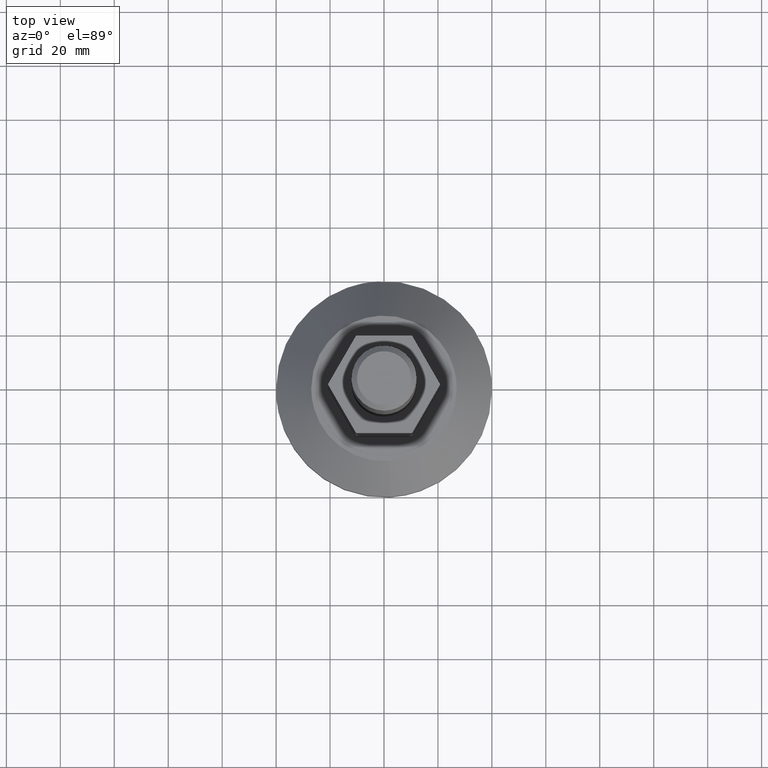
[diagram: clean part render]
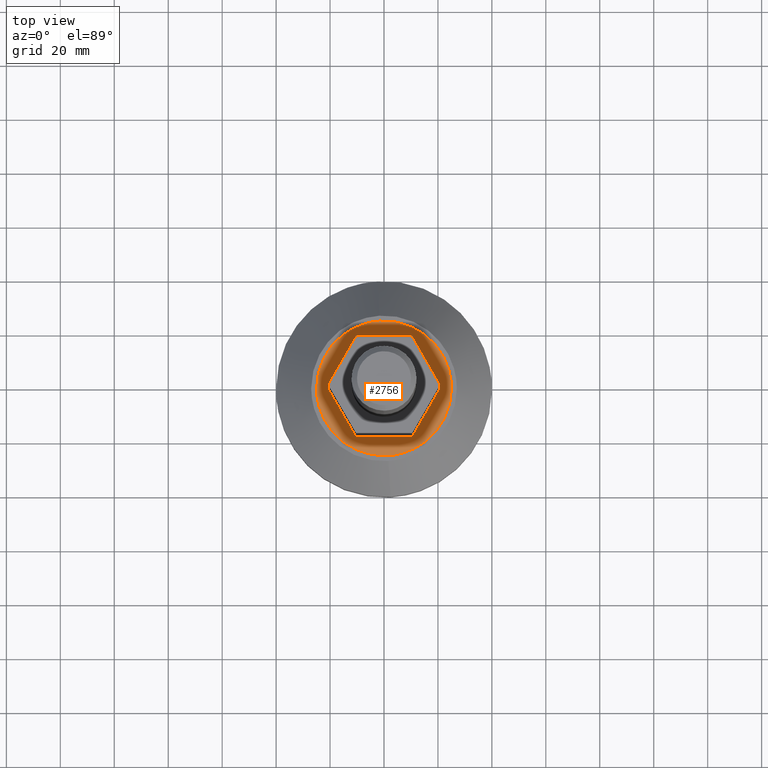
[diagram: same view with one face highlighted and labeled with its STEP entity id]
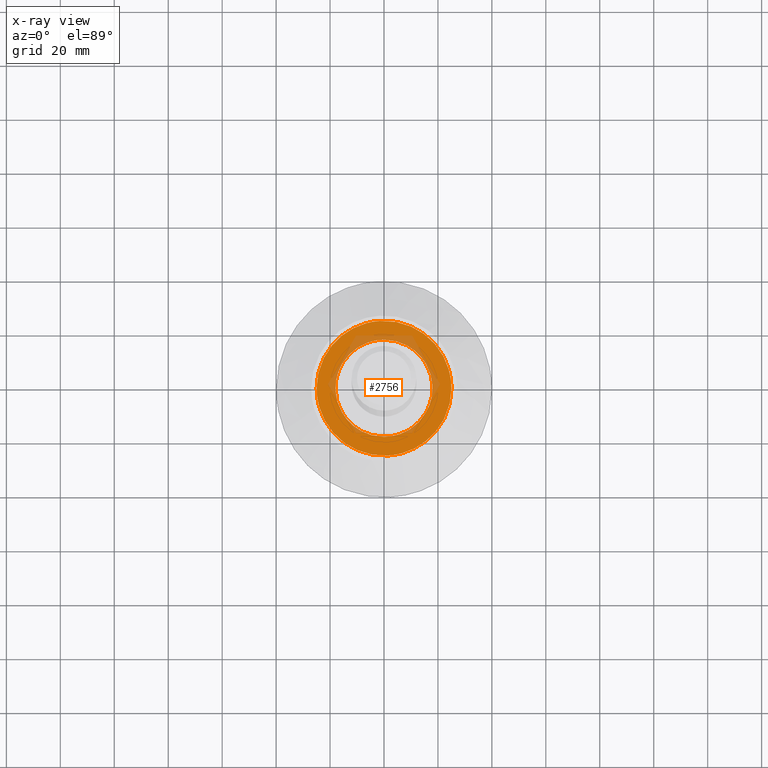
[diagram: x-ray of the same camera — body ghosted, the highlighted face saturated]
A machine part, top view. The second image highlights one B-rep face of the part: STEP entity #2756.
The next image is the same camera in x-ray: the body ghosted, the highlighted face saturated — about 15% of this face is hidden behind the body in this view.
In plain terms, the highlighted face is a freeform B-spline surface patch.
Its self-contained STEP definition (entity closure, byte-faithful):
#2094=CARTESIAN_POINT('',(-1.526213488627069,24.953369960531042,31.500000000000000));
#2095=VERTEX_POINT('',#2094);
#2101=CARTESIAN_POINT('',(25.0,0.0,31.500000000000000));
#2102=VERTEX_POINT('',#2101);
#2103=CARTESIAN_POINT('',(-1.526213488627069,24.953369960531042,31.500000000000004));
#2104=CARTESIAN_POINT('',(-0.763819082592904,24.999999999999996,31.500000000000000));
#2105=CARTESIAN_POINT('',(0.0,25.0,31.500000000000000));
#2106=CARTESIAN_POINT('',(25.000000000000004,25.000000000000004,31.500000000000007));
#2107=CARTESIAN_POINT('',(25.0,0.0,31.500000000000000));
#2115=(BOUNDED_CURVE()B_SPLINE_CURVE(2,(#2103,#2104,#2105,#2106,#2107),.UNSPECIFIED.,.F.,.U.)B_SPLINE_CURVE_WITH_KNOTS((3,2,3),(0.239332962240201,0.250000000000000,0.500000000000000),.UNSPECIFIED.)CURVE()GEOMETRIC_REPRESENTATION_ITEM()RATIONAL_B_SPLINE_CURVE((0.976072041669413,0.987502787901311,1.0,0.707106781186547,1.0))REPRESENTATION_ITEM(''));
#2116=EDGE_CURVE('',#2095,#2102,#2115,.T.);
#2118=CARTESIAN_POINT('',(1.526213488627072,-24.953369960531042,31.499999999999989));
#2119=VERTEX_POINT('',#2118);
#2120=CARTESIAN_POINT('',(25.0,0.0,31.500000000000000));
#2121=CARTESIAN_POINT('',(25.000000000000004,-23.517651672400980,31.500000000000004));
#2122=CARTESIAN_POINT('',(1.526213488627078,-24.953369960531035,31.499999999999996));
#2130=(BOUNDED_CURVE()B_SPLINE_CURVE(2,(#2120,#2121,#2122),.UNSPECIFIED.,.F.,.U.)B_SPLINE_CURVE_WITH_KNOTS((3,3),(0.500000000000000,0.739332962240201),.UNSPECIFIED.)CURVE()GEOMETRIC_REPRESENTATION_ITEM()RATIONAL_B_SPLINE_CURVE((1.0,0.719603993285237,0.976072041669413))REPRESENTATION_ITEM(''));
#2131=EDGE_CURVE('',#2102,#2119,#2130,.T.);
#2163=CARTESIAN_POINT('',(-25.0,0.0,31.500000000000000));
#2164=VERTEX_POINT('',#2163);
#2165=CARTESIAN_POINT('',(1.526213488627078,-24.953369960531035,31.499999999999996));
#2166=CARTESIAN_POINT('',(0.763819082592908,-25.0,31.500000000000004));
#2167=CARTESIAN_POINT('',(0.0,-25.0,31.500000000000000));
#2168=CARTESIAN_POINT('',(-25.000000000000004,-25.000000000000004,31.500000000000007));
#2169=CARTESIAN_POINT('',(-25.0,0.0,31.500000000000000));
#2177=(BOUNDED_CURVE()B_SPLINE_CURVE(2,(#2165,#2166,#2167,#2168,#2169),.UNSPECIFIED.,.F.,.U.)B_SPLINE_CURVE_WITH_KNOTS((3,2,3),(0.739332962240201,0.750000000000000,1.0),.UNSPECIFIED.)CURVE()GEOMETRIC_REPRESENTATION_ITEM()RATIONAL_B_SPLINE_CURVE((0.976072041669413,0.987502787901311,1.0,0.707106781186547,1.0))REPRESENTATION_ITEM(''));
#2178=EDGE_CURVE('',#2119,#2164,#2177,.T.);
#2180=CARTESIAN_POINT('',(-25.0,0.0,31.500000000000000));
#2181=CARTESIAN_POINT('',(-24.999999999999993,23.517651672400984,31.499999999999996));
#2182=CARTESIAN_POINT('',(-1.526213488627069,24.953369960531042,31.500000000000004));
#2190=(BOUNDED_CURVE()B_SPLINE_CURVE(2,(#2180,#2181,#2182),.UNSPECIFIED.,.F.,.U.)B_SPLINE_CURVE_WITH_KNOTS((3,3),(0.0,0.239332962240201),.UNSPECIFIED.)CURVE()GEOMETRIC_REPRESENTATION_ITEM()RATIONAL_B_SPLINE_CURVE((1.0,0.719603993285237,0.976072041669413))REPRESENTATION_ITEM(''));
#2191=EDGE_CURVE('',#2164,#2095,#2190,.T.);
#2260=CARTESIAN_POINT('',(15.588457268120150,-9.000000000000149,31.500000000000000));
#2261=VERTEX_POINT('',#2260);
#2313=CARTESIAN_POINT('',(15.588457268120150,9.000000000000158,31.500000000000000));
#2314=VERTEX_POINT('',#2313);
#2360=CARTESIAN_POINT('',(0.0,18.0,31.500000000000000));
#2361=VERTEX_POINT('',#2360);
#2412=CARTESIAN_POINT('',(-15.588457268119599,8.999999999999782,31.500000000000000));
#2413=VERTEX_POINT('',#2412);
#2459=CARTESIAN_POINT('',(-15.588457268119649,-9.0,31.500000000000000));
#2460=VERTEX_POINT('',#2459);
#2504=CARTESIAN_POINT('',(0.0,-18.0,31.500000000000000));
#2505=VERTEX_POINT('',#2504);
#2561=CARTESIAN_POINT('',(15.588457268120150,9.000000000000158,31.500000000000000));
#2562=CARTESIAN_POINT('',(20.784609690533351,6.938894E-015,31.500000000000007));
#2563=CARTESIAN_POINT('',(15.588457267900020,-8.999999999873046,31.500000000000000));
#2571=(BOUNDED_CURVE()B_SPLINE_CURVE(2,(#2561,#2562,#2563),.UNSPECIFIED.,.F.,.U.)CURVE()GEOMETRIC_REPRESENTATION_ITEM()QUASI_UNIFORM_CURVE()RATIONAL_B_SPLINE_CURVE((1.0,0.866025403784439,1.0))REPRESENTATION_ITEM(''));
#2572=EDGE_CURVE('',#2314,#2261,#2571,.T.);
#2593=CARTESIAN_POINT('',(0.0,18.0,31.500000000000000));
#2594=CARTESIAN_POINT('',(10.392304845266670,17.999999999746105,31.500000000000000));
#2595=CARTESIAN_POINT('',(15.588457267900010,8.999999999873056,31.500000000000000));
#2603=(BOUNDED_CURVE()B_SPLINE_CURVE(2,(#2593,#2594,#2595),.UNSPECIFIED.,.F.,.U.)CURVE()GEOMETRIC_REPRESENTATION_ITEM()QUASI_UNIFORM_CURVE()RATIONAL_B_SPLINE_CURVE((1.0,0.866025403784439,1.0))REPRESENTATION_ITEM(''));
#2604=EDGE_CURVE('',#2361,#2314,#2603,.T.);
#2624=CARTESIAN_POINT('',(-15.588457268119599,8.999999999999782,31.500000000000000));
#2625=CARTESIAN_POINT('',(-10.392304845266702,17.999999999746098,31.500000000000000));
#2626=CARTESIAN_POINT('',(0.0,17.999999999746102,31.500000000000000));
#2634=(BOUNDED_CURVE()B_SPLINE_CURVE(2,(#2624,#2625,#2626),.UNSPECIFIED.,.F.,.U.)CURVE()GEOMETRIC_REPRESENTATION_ITEM()QUASI_UNIFORM_CURVE()RATIONAL_B_SPLINE_CURVE((1.0,0.866025403784438,1.0))REPRESENTATION_ITEM(''));
#2635=EDGE_CURVE('',#2413,#2361,#2634,.T.);
#2656=CARTESIAN_POINT('',(-15.588457268119649,-9.0,31.500000000000000));
#2657=CARTESIAN_POINT('',(-20.784609690533372,-9.714451E-014,31.500000000000004));
#2658=CARTESIAN_POINT('',(-15.588457267900040,8.999999999873008,31.500000000000000));
#2666=(BOUNDED_CURVE()B_SPLINE_CURVE(2,(#2656,#2657,#2658),.UNSPECIFIED.,.F.,.U.)CURVE()GEOMETRIC_REPRESENTATION_ITEM()QUASI_UNIFORM_CURVE()RATIONAL_B_SPLINE_CURVE((1.0,0.866025403784438,1.0))REPRESENTATION_ITEM(''));
#2667=EDGE_CURVE('',#2460,#2413,#2666,.T.);
#2689=CARTESIAN_POINT('',(15.588457268120150,-9.000000000000149,31.500000000000000));
#2690=CARTESIAN_POINT('',(10.392304845266677,-17.999999999746109,31.500000000000004));
#2691=CARTESIAN_POINT('',(0.0,-17.999999999746102,31.500000000000000));
#2699=(BOUNDED_CURVE()B_SPLINE_CURVE(2,(#2689,#2690,#2691),.UNSPECIFIED.,.F.,.U.)CURVE()GEOMETRIC_REPRESENTATION_ITEM()QUASI_UNIFORM_CURVE()RATIONAL_B_SPLINE_CURVE((1.0,0.866025403784439,1.0))REPRESENTATION_ITEM(''));
#2700=EDGE_CURVE('',#2261,#2505,#2699,.T.);
#2720=CARTESIAN_POINT('',(0.0,-18.0,31.500000000000000));
#2721=CARTESIAN_POINT('',(-10.392304845266594,-17.999999999746098,31.500000000000004));
#2722=CARTESIAN_POINT('',(-15.588457267899949,-8.999999999873156,31.500000000000000));
#2730=(BOUNDED_CURVE()B_SPLINE_CURVE(2,(#2720,#2721,#2722),.UNSPECIFIED.,.F.,.U.)CURVE()GEOMETRIC_REPRESENTATION_ITEM()QUASI_UNIFORM_CURVE()RATIONAL_B_SPLINE_CURVE((1.0,0.866025403784440,1.0))REPRESENTATION_ITEM(''));
#2731=EDGE_CURVE('',#2505,#2460,#2730,.T.);
#2737=CARTESIAN_POINT('',(-27.497499903090301,-27.496884682729771,31.500000000000000));
#2738=CARTESIAN_POINT('',(27.497501244194812,-27.496884682729771,31.500000000000000));
#2739=CARTESIAN_POINT('',(-27.497499903090301,27.496883788660099,31.500000000000000));
#2740=CARTESIAN_POINT('',(27.497501244194812,27.496883788660099,31.500000000000000));
#2741=B_SPLINE_SURFACE_WITH_KNOTS('',1,1,((#2737,#2739),(#2738,#2740)),.UNSPECIFIED.,.F.,.F.,.U.,(2,2),(2,2),(0.0,54.995001147285109),(0.0,54.993768471389870),.UNSPECIFIED.);
#2742=ORIENTED_EDGE('',*,*,#2178,.F.);
#2743=ORIENTED_EDGE('',*,*,#2131,.F.);
#2744=ORIENTED_EDGE('',*,*,#2116,.F.);
#2745=ORIENTED_EDGE('',*,*,#2191,.F.);
#2746=EDGE_LOOP('',(#2742,#2743,#2744,#2745));
#2747=FACE_OUTER_BOUND('',#2746,.T.);
#2748=ORIENTED_EDGE('',*,*,#2572,.T.);
#2749=ORIENTED_EDGE('',*,*,#2700,.T.);
#2750=ORIENTED_EDGE('',*,*,#2731,.T.);
#2751=ORIENTED_EDGE('',*,*,#2667,.T.);
#2752=ORIENTED_EDGE('',*,*,#2635,.T.);
#2753=ORIENTED_EDGE('',*,*,#2604,.T.);
#2754=EDGE_LOOP('',(#2748,#2749,#2750,#2751,#2752,#2753));
#2755=FACE_BOUND('',#2754,.T.);
#2756=ADVANCED_FACE('',(#2747,#2755),#2741,.T.);